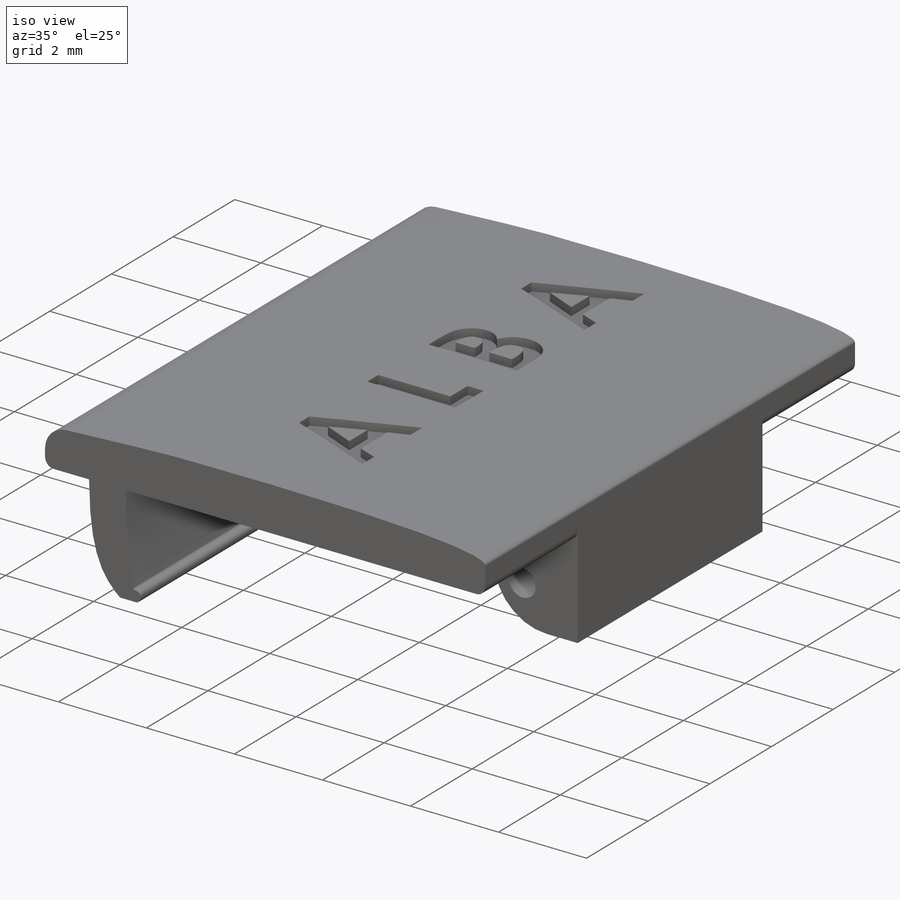
[diagram: iso view]
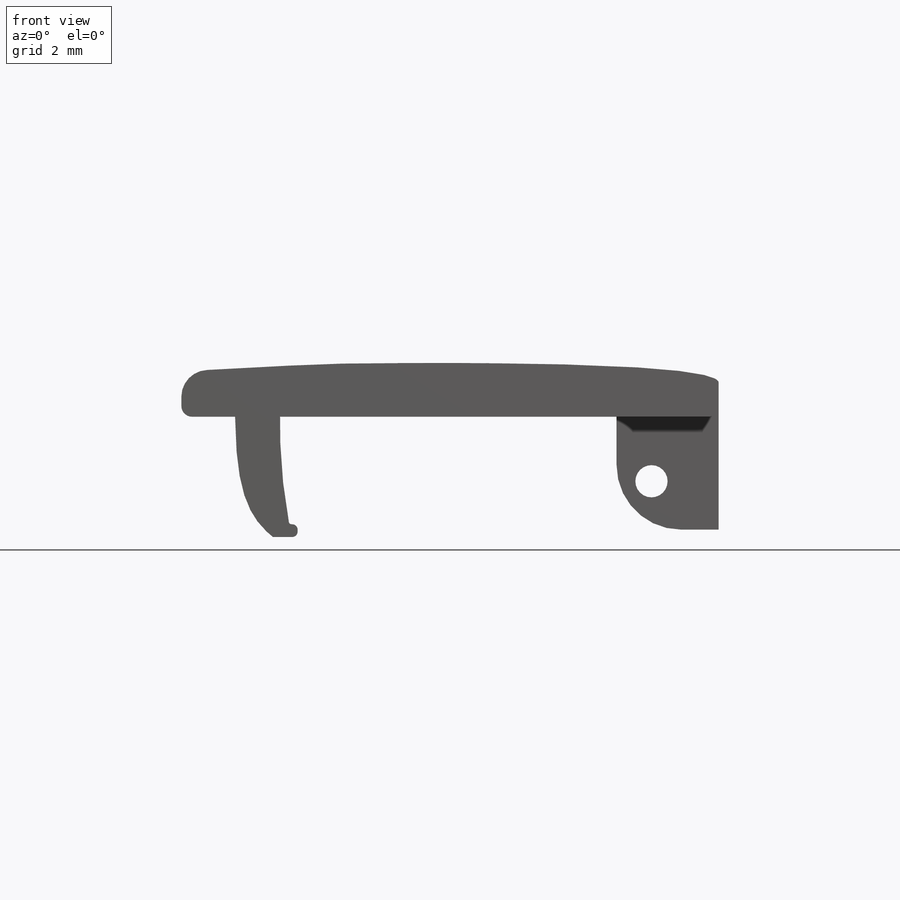
[diagram: front view]
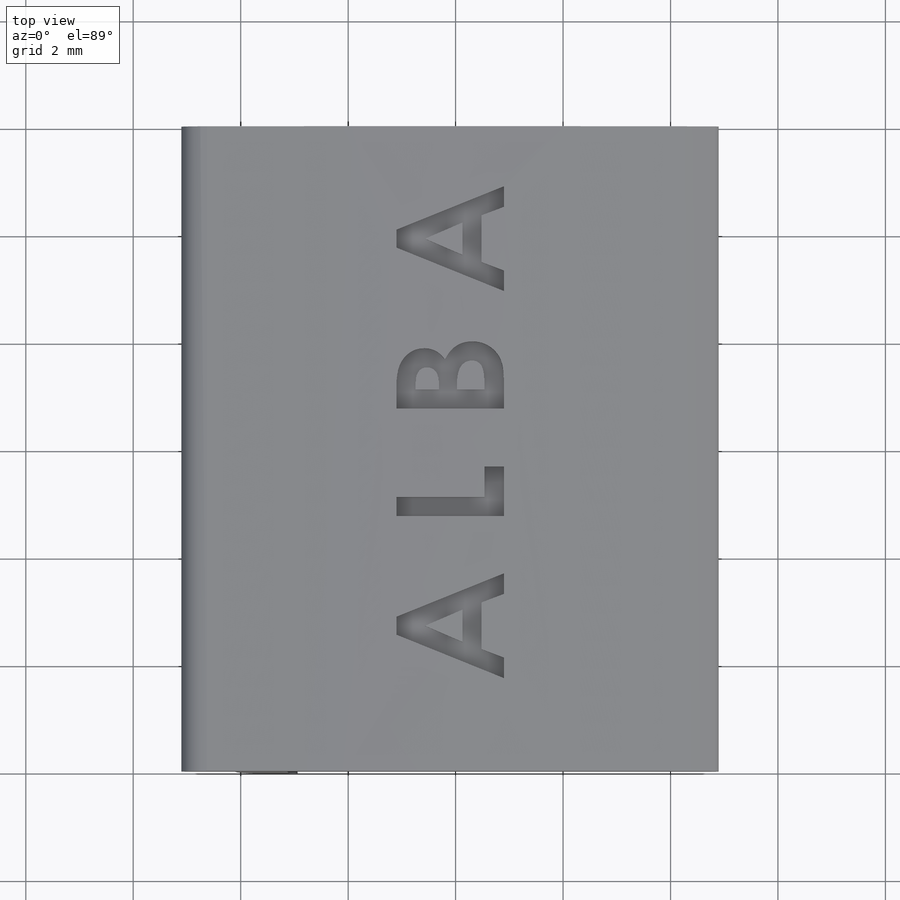
[diagram: top view]
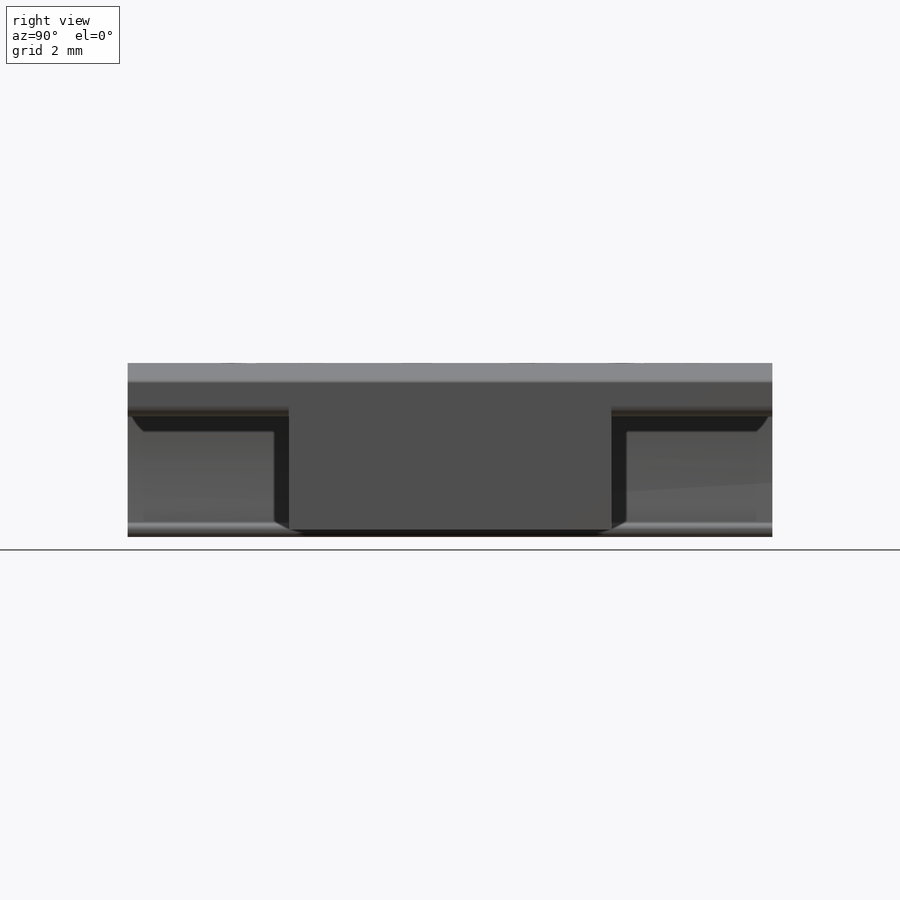
[diagram: right view]
SOLIDWORKS PART (.sldprt)
format: sldprt  version: not decoded by parser v0  size: 297,984 bytes
history: native  units: mm
features: sketch x5, extrude x2, cut_extrude x2, material x1, fillet x1, plane x1 (+16 scaffold rows collapsed)
feature tree (28):
  scaffold x16  (default folders/planes/origin — collapsed)
  material  "Material <not specified>"
  sketch  "Sketch1"  dims[c1.D3=0.1mm c1.D5=0.05mm c1.D6=0.05mm c1.D8=0.5mm c1.D9=0.2mm c1.D1=1.0mm c1.D2=1.0mm c2.D3=~1.149167mm c2.D4=2.0mm c2.D6=~1.44585mm c3.D6=~0.191879deg c4.D6=~1.44585mm c4.D7=11.0mm c4.D8=0.85mm c4.D9=~1.469699mm c5.D7=10.0mm c5.D9=1.0mm c5.D10=1.0mm]
  extrude  "Boss-Extrude1"  Depth=12mm
  sketch  "Sketch2"  dims[D1=1.9mm D2=6.0mm D3=3.0mm]
  extrude  "Boss-Extrude2"  Depth=2.1mm
  fillet  "Fillet1"  Radius=1.2mm
  sketch  "Sketch3"  dims[D1=0.9mm D2=1.25mm]
  cut_extrude  "Cut-Extrude1"  [1 undecoded]
  plane  "Plane1"  Offset=6.5mm
  sketch  "Sketch8"  dims[D1=4.0mm]
  sketch  "Sketch9"
  cut_extrude  "Cut-Extrude3"  Depth=0.3mm
decode coverage: 8 of 10 modeling features carry decoded parameters
note: ~ marks probable driven/reference dimensions
note: 1 parameter value undecoded
note: suppression state not decoded; provenance and decode notes live in map.json
